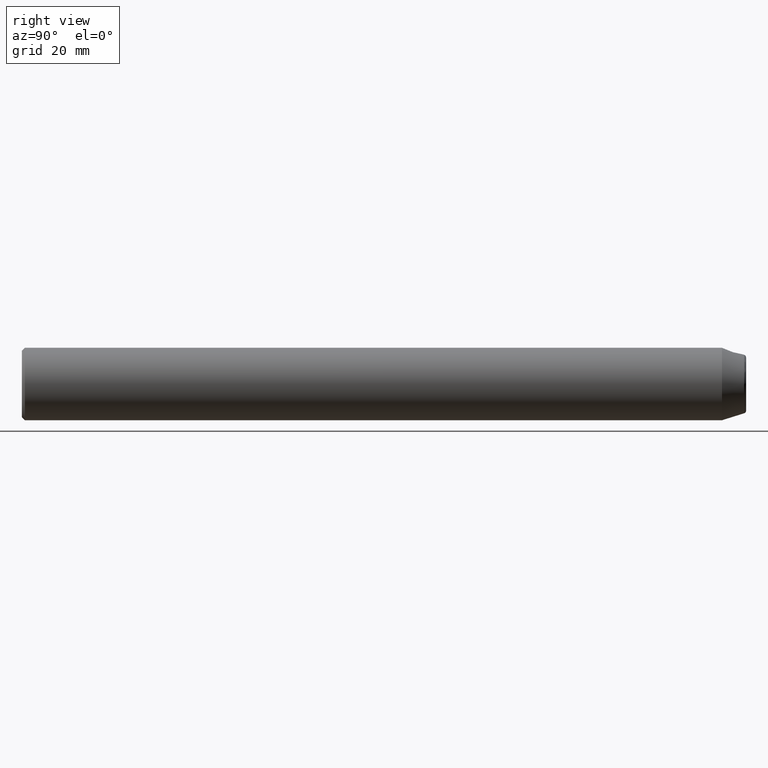
[diagram: clean part render]
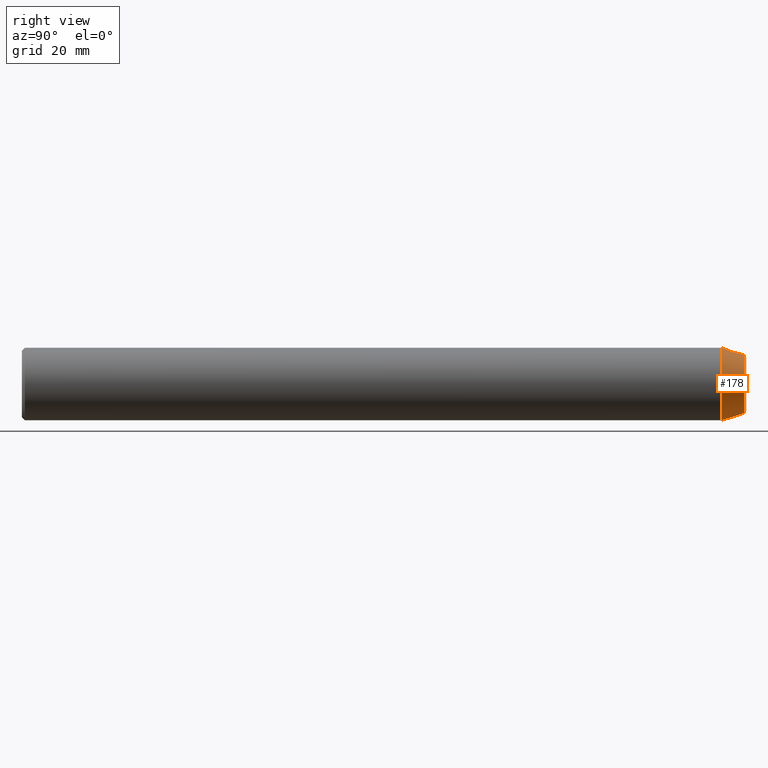
[diagram: same view with one face highlighted and labeled with its STEP entity id]
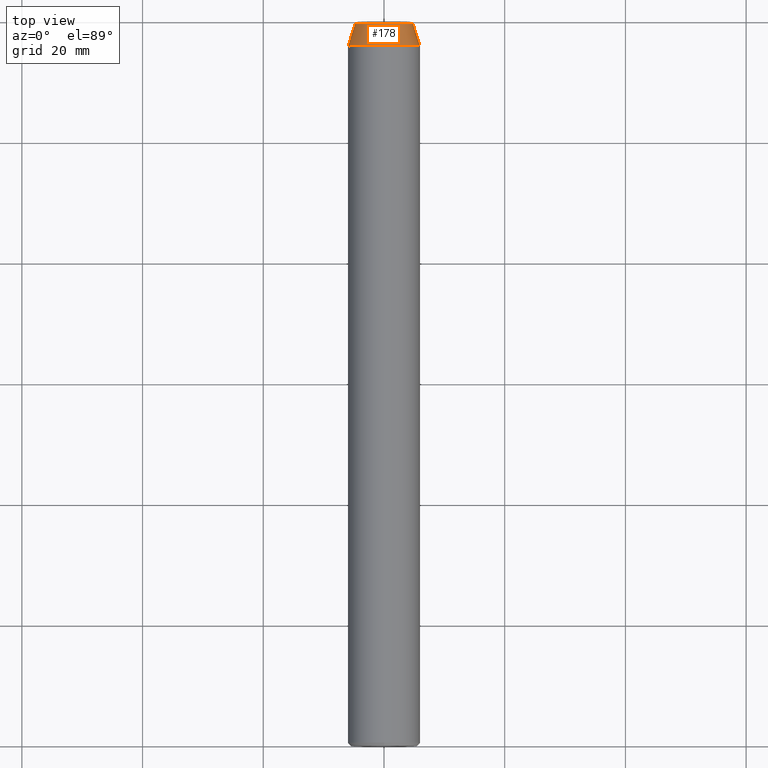
[diagram: same view with one face highlighted and labeled with its STEP entity id]
A machine part, right view. The second image highlights one B-rep face of the part: STEP entity #178.
A second angle (top view) of the same face is appended — the face is thin or edge-on in the first view.
In plain terms, the highlighted conical surface has half-angle 17.354 deg.
Its self-contained STEP definition (entity closure, byte-faithful):
#12 = DIRECTION ( 'NONE',  ( 0.000000000000000000, 0.000000000000000000, -1.000000000000000000 ) ) ;
#27 = CIRCLE ( 'NONE', #67, 4.859644532331230948 ) ;
#32 = CARTESIAN_POINT ( 'NONE',  ( 0.000000000000000000, 119.6491374965103205, -4.859644532331230948 ) ) ;
#41 = EDGE_CURVE ( 'NONE', #59, #59, #258, .T. ) ;
#43 = DIRECTION ( 'NONE',  ( 0.000000000000000000, -1.000000000000000000, 0.000000000000000000 ) ) ;
#46 = CONICAL_SURFACE ( 'NONE', #220, 5.999999999971805664, 0.3028848683740845149 ) ;
#59 = VERTEX_POINT ( 'NONE', #89 ) ;
#67 = AXIS2_PLACEMENT_3D ( 'NONE', #256, #293, #12 ) ;
#89 = CARTESIAN_POINT ( 'NONE',  ( 0.000000000000000000, 115.9999999999999858, -6.000000000000000888 ) ) ;
#92 = AXIS2_PLACEMENT_3D ( 'NONE', #182, #221, #223 ) ;
#99 = EDGE_LOOP ( 'NONE', ( #130 ) ) ;
#119 = DIRECTION ( 'NONE',  ( 0.000000000000000000, 0.000000000000000000, -1.000000000000000000 ) ) ;
#130 = ORIENTED_EDGE ( 'NONE', *, *, #41, .F. ) ;
#144 = EDGE_CURVE ( 'NONE', #162, #162, #27, .T. ) ;
#162 = VERTEX_POINT ( 'NONE', #32 ) ;
#178 = ADVANCED_FACE ( 'NONE', ( #254, #277 ), #46, .T. ) ;
#182 = CARTESIAN_POINT ( 'NONE',  ( 0.000000000000000000, 115.9999999999999858, 0.000000000000000000 ) ) ;
#207 = EDGE_LOOP ( 'NONE', ( #305 ) ) ;
#210 = CARTESIAN_POINT ( 'NONE',  ( 0.000000000000000000, 116.0000000000718501, 0.000000000000000000 ) ) ;
#220 = AXIS2_PLACEMENT_3D ( 'NONE', #210, #43, #119 ) ;
#221 = DIRECTION ( 'NONE',  ( -0.000000000000000000, -1.000000000000000000, -0.000000000000000000 ) ) ;
#223 = DIRECTION ( 'NONE',  ( 0.000000000000000000, 0.000000000000000000, -1.000000000000000000 ) ) ;
#254 = FACE_OUTER_BOUND ( 'NONE', #99, .T. ) ;
#256 = CARTESIAN_POINT ( 'NONE',  ( 0.000000000000000000, 119.6491374965103205, 0.000000000000000000 ) ) ;
#258 = CIRCLE ( 'NONE', #92, 6.000000000000000888 ) ;
#277 = FACE_BOUND ( 'NONE', #207, .T. ) ;
#293 = DIRECTION ( 'NONE',  ( 0.000000000000000000, -1.000000000000000000, 0.000000000000000000 ) ) ;
#305 = ORIENTED_EDGE ( 'NONE', *, *, #144, .T. ) ;